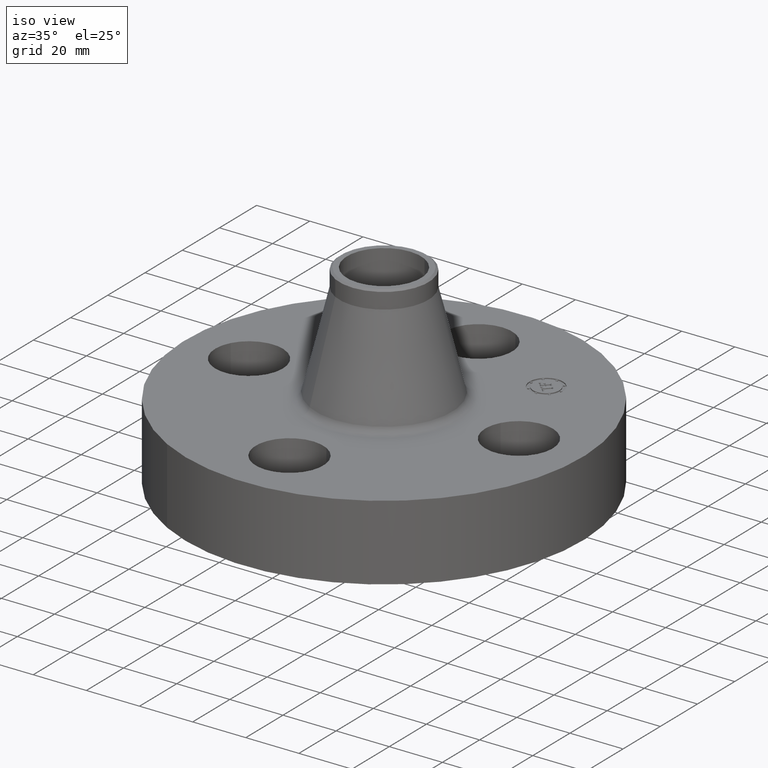
[diagram: clean part render]
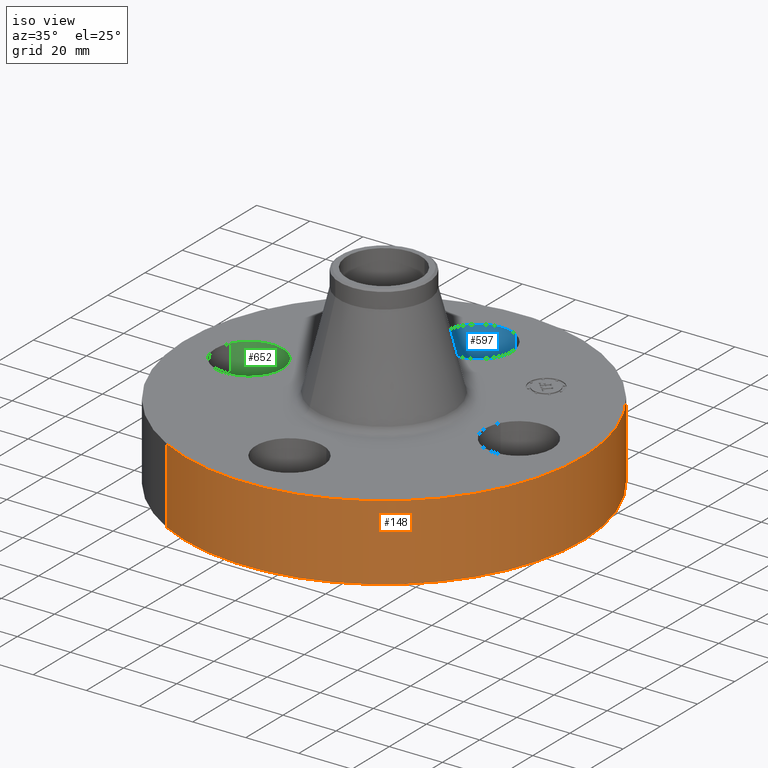
[diagram: same view with three faces highlighted in distinct colors, each labeled with its STEP entity id]
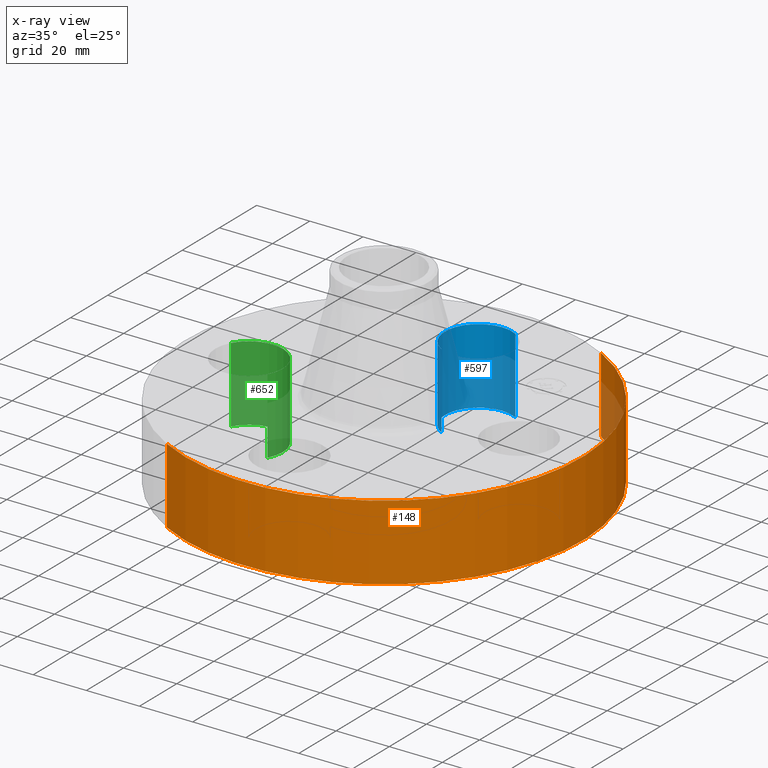
[diagram: x-ray of the same camera — body ghosted, the three highlighted faces saturated]
A machine part, iso view with three faces highlighted in distinct colors.
The next image is the same camera in x-ray (body ghosted, the three faces saturated) — at least one of them is partly hidden behind the body in this view.
Their STEP definitions:

[orange] entity #148 — the highlighted cylindrical surface (partial cylindrical patch) has radius 74.676 mm, axis along (0, 0, -1).
#95=AXIS2_PLACEMENT_3D('Cylinder Axis2P3D',#92,#93,#94) ;
#134=AXIS2_PLACEMENT_3D('Circle Axis2P3D',#132,#133,$) ;
#139=AXIS2_PLACEMENT_3D('Circle Axis2P3D',#137,#138,$) ;
#92=CARTESIAN_POINT('Axis2P3D Location',(0.,0.,1.31500000001)) ;
#101=CARTESIAN_POINT('Vertex',(-1.4095110835,-2.58009273197,2.79741234551E-016)) ;
#103=CARTESIAN_POINT('Vertex',(1.4095110835,2.58009273197,2.79741234551E-016)) ;
#106=CARTESIAN_POINT('Line Origine',(-1.4095110835,-2.58009273197,0.560000000002)) ;
#110=CARTESIAN_POINT('Vertex',(-1.4095110835,-2.58009273197,1.12)) ;
#117=CARTESIAN_POINT('Vertex',(1.4095110835,2.58009273197,1.12)) ;
#120=CARTESIAN_POINT('Line Origine',(1.4095110835,2.58009273197,0.560000000002)) ;
#132=CARTESIAN_POINT('Axis2P3D Location',(0.,0.,2.79741234551E-016)) ;
#137=CARTESIAN_POINT('Axis2P3D Location',(0.,0.,1.12)) ;
#93=DIRECTION('Axis2P3D Direction',(0.,0.,-0.0393700787402)) ;
#94=DIRECTION('Axis2P3D XDirection',(0.0188750212049,0.0345504945626,0.)) ;
#107=DIRECTION('Vector Direction',(0.,0.,-0.0393700787402)) ;
#121=DIRECTION('Vector Direction',(0.,0.,-0.0393700787402)) ;
#133=DIRECTION('Axis2P3D Direction',(0.,0.,-0.0393700787402)) ;
#138=DIRECTION('Axis2P3D Direction',(0.,0.,-0.0393700787402)) ;
#108=VECTOR('Line Direction',#107,0.0393700787402) ;
#122=VECTOR('Line Direction',#121,0.0393700787402) ;
#143=ORIENTED_EDGE('',*,*,#136,.F.) ;
#144=ORIENTED_EDGE('',*,*,#124,.T.) ;
#145=ORIENTED_EDGE('',*,*,#141,.T.) ;
#146=ORIENTED_EDGE('',*,*,#112,.F.) ;
#148=ADVANCED_FACE('PartBody',(#147),#96,.T.) ;
#135=CIRCLE('generated circle',#134,2.94000000001) ;
#140=CIRCLE('generated circle',#139,2.94000000001) ;
#96=CYLINDRICAL_SURFACE('generated cylinder',#95,2.94000000001) ;
#112=EDGE_CURVE('',#102,#111,#109,.F.) ;
#124=EDGE_CURVE('',#104,#118,#123,.F.) ;
#136=EDGE_CURVE('',#104,#102,#135,.T.) ;
#141=EDGE_CURVE('',#118,#111,#140,.T.) ;
#142=EDGE_LOOP('',(#143,#144,#145,#146)) ;
#147=FACE_OUTER_BOUND('',#142,.T.) ;
#109=LINE('Line',#106,#108) ;
#123=LINE('Line',#120,#122) ;
#102=VERTEX_POINT('',#101) ;
#104=VERTEX_POINT('',#103) ;
#111=VERTEX_POINT('',#110) ;
#118=VERTEX_POINT('',#117) ;

[blue] entity #597 — the highlighted cylindrical surface (partial cylindrical patch) has radius 12.7 mm, axis along (0, 0, -1).
#550=AXIS2_PLACEMENT_3D('Circle Axis2P3D',#548,#549,$) ;
#570=AXIS2_PLACEMENT_3D('Cylinder Axis2P3D',#567,#568,#569) ;
#588=AXIS2_PLACEMENT_3D('Circle Axis2P3D',#586,#587,$) ;
#548=CARTESIAN_POINT('Axis2P3D Location',(-3.49676543189E-016,2.00000000001,0.)) ;
#552=CARTESIAN_POINT('Vertex',(-0.239712769303,1.56120871906,0.)) ;
#554=CARTESIAN_POINT('Vertex',(0.239712769303,2.43879128095,0.)) ;
#567=CARTESIAN_POINT('Axis2P3D Location',(-3.67394039746E-016,2.00000000001,1.11606299213)) ;
#572=CARTESIAN_POINT('Line Origine',(-0.239712769303,1.56120871906,0.560000000002)) ;
#576=CARTESIAN_POINT('Vertex',(-0.239712769303,1.56120871906,1.12)) ;
#579=CARTESIAN_POINT('Line Origine',(0.239712769303,2.43879128095,0.560000000002)) ;
#583=CARTESIAN_POINT('Vertex',(0.239712769303,2.43879128095,1.12)) ;
#586=CARTESIAN_POINT('Axis2P3D Location',(-3.67394039746E-016,2.00000000001,1.12)) ;
#549=DIRECTION('Axis2P3D Direction',(0.,0.,-0.0393700787402)) ;
#568=DIRECTION('Axis2P3D Direction',(0.,0.,-0.0393700787402)) ;
#569=DIRECTION('Axis2P3D XDirection',(0.0188750212049,0.0345504945626,0.)) ;
#573=DIRECTION('Vector Direction',(0.,0.,-0.0393700787402)) ;
#580=DIRECTION('Vector Direction',(0.,0.,-0.0393700787402)) ;
#587=DIRECTION('Axis2P3D Direction',(0.,0.,-0.0393700787402)) ;
#574=VECTOR('Line Direction',#573,0.0393700787402) ;
#581=VECTOR('Line Direction',#580,0.0393700787402) ;
#592=ORIENTED_EDGE('',*,*,#578,.F.) ;
#593=ORIENTED_EDGE('',*,*,#556,.T.) ;
#594=ORIENTED_EDGE('',*,*,#585,.T.) ;
#595=ORIENTED_EDGE('',*,*,#590,.F.) ;
#597=ADVANCED_FACE('PartBody',(#596),#571,.F.) ;
#551=CIRCLE('generated circle',#550,0.500000000002) ;
#589=CIRCLE('generated circle',#588,0.500000000002) ;
#571=CYLINDRICAL_SURFACE('generated cylinder',#570,0.500000000002) ;
#556=EDGE_CURVE('',#553,#555,#551,.T.) ;
#578=EDGE_CURVE('',#553,#577,#575,.F.) ;
#585=EDGE_CURVE('',#555,#584,#582,.F.) ;
#590=EDGE_CURVE('',#577,#584,#589,.T.) ;
#591=EDGE_LOOP('',(#592,#593,#594,#595)) ;
#596=FACE_OUTER_BOUND('',#591,.T.) ;
#575=LINE('Line',#572,#574) ;
#582=LINE('Line',#579,#581) ;
#553=VERTEX_POINT('',#552) ;
#555=VERTEX_POINT('',#554) ;
#577=VERTEX_POINT('',#576) ;
#584=VERTEX_POINT('',#583) ;

[green] entity #652 — the highlighted cylindrical surface (partial cylindrical patch) has radius 12.7 mm, axis along (-0, 0, -1).
#541=AXIS2_PLACEMENT_3D('Circle Axis2P3D',#539,#540,$) ;
#613=AXIS2_PLACEMENT_3D('Cylinder Axis2P3D',#610,#611,#612) ;
#643=AXIS2_PLACEMENT_3D('Circle Axis2P3D',#641,#642,$) ;
#534=CARTESIAN_POINT('Vertex',(-1.56120871906,-0.239712769303,0.)) ;
#536=CARTESIAN_POINT('Vertex',(-2.43879128095,0.239712769303,0.)) ;
#539=CARTESIAN_POINT('Axis2P3D Location',(-2.00000000001,-1.39870617276E-016,0.)) ;
#610=CARTESIAN_POINT('Axis2P3D Location',(-2.00000000001,-2.4492935983E-016,1.11606299213)) ;
#615=CARTESIAN_POINT('Line Origine',(-1.56120871906,-0.239712769303,0.560000000002)) ;
#619=CARTESIAN_POINT('Vertex',(-1.56120871906,-0.239712769303,1.12)) ;
#622=CARTESIAN_POINT('Line Origine',(-2.43879128095,0.239712769303,0.560000000002)) ;
#626=CARTESIAN_POINT('Vertex',(-2.43879128095,0.239712769303,1.12)) ;
#641=CARTESIAN_POINT('Axis2P3D Location',(-2.00000000001,-2.4492935983E-016,1.12)) ;
#540=DIRECTION('Axis2P3D Direction',(0.,0.,-0.0393700787402)) ;
#611=DIRECTION('Axis2P3D Direction',(-0.,0.,-0.0393700787402)) ;
#612=DIRECTION('Axis2P3D XDirection',(-0.0345504945626,0.0188750212049,0.)) ;
#616=DIRECTION('Vector Direction',(0.,0.,-0.0393700787402)) ;
#623=DIRECTION('Vector Direction',(0.,0.,-0.0393700787402)) ;
#642=DIRECTION('Axis2P3D Direction',(-0.,0.,-0.0393700787402)) ;
#617=VECTOR('Line Direction',#616,0.0393700787402) ;
#624=VECTOR('Line Direction',#623,0.0393700787402) ;
#647=ORIENTED_EDGE('',*,*,#628,.F.) ;
#648=ORIENTED_EDGE('',*,*,#543,.T.) ;
#649=ORIENTED_EDGE('',*,*,#621,.T.) ;
#650=ORIENTED_EDGE('',*,*,#645,.F.) ;
#652=ADVANCED_FACE('PartBody',(#651),#614,.F.) ;
#542=CIRCLE('generated circle',#541,0.500000000002) ;
#644=CIRCLE('generated circle',#643,0.500000000002) ;
#614=CYLINDRICAL_SURFACE('generated cylinder',#613,0.500000000002) ;
#543=EDGE_CURVE('',#537,#535,#542,.T.) ;
#621=EDGE_CURVE('',#535,#620,#618,.F.) ;
#628=EDGE_CURVE('',#537,#627,#625,.F.) ;
#645=EDGE_CURVE('',#627,#620,#644,.T.) ;
#646=EDGE_LOOP('',(#647,#648,#649,#650)) ;
#651=FACE_OUTER_BOUND('',#646,.T.) ;
#618=LINE('Line',#615,#617) ;
#625=LINE('Line',#622,#624) ;
#535=VERTEX_POINT('',#534) ;
#537=VERTEX_POINT('',#536) ;
#620=VERTEX_POINT('',#619) ;
#627=VERTEX_POINT('',#626) ;